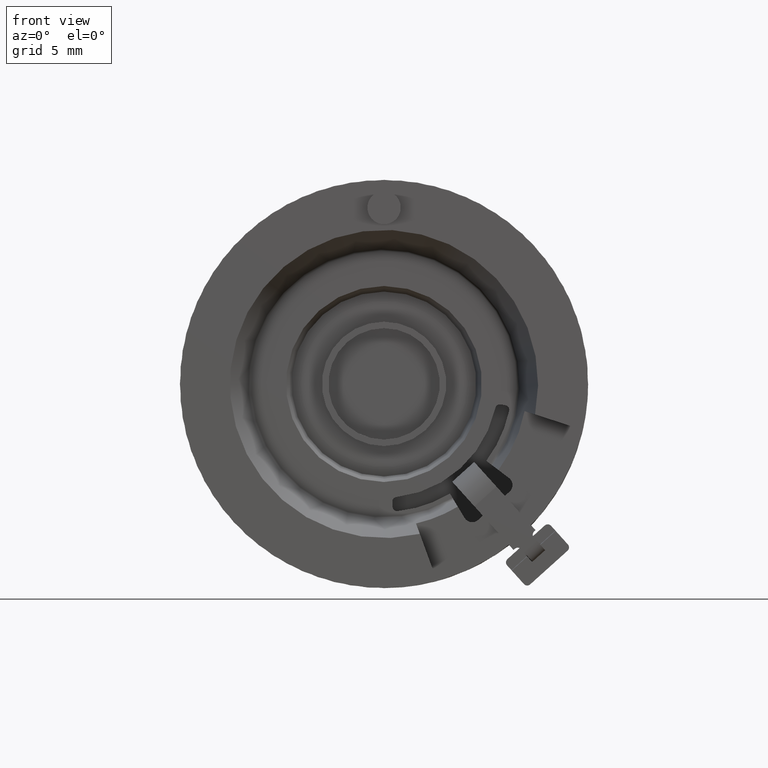
[diagram: clean part render]
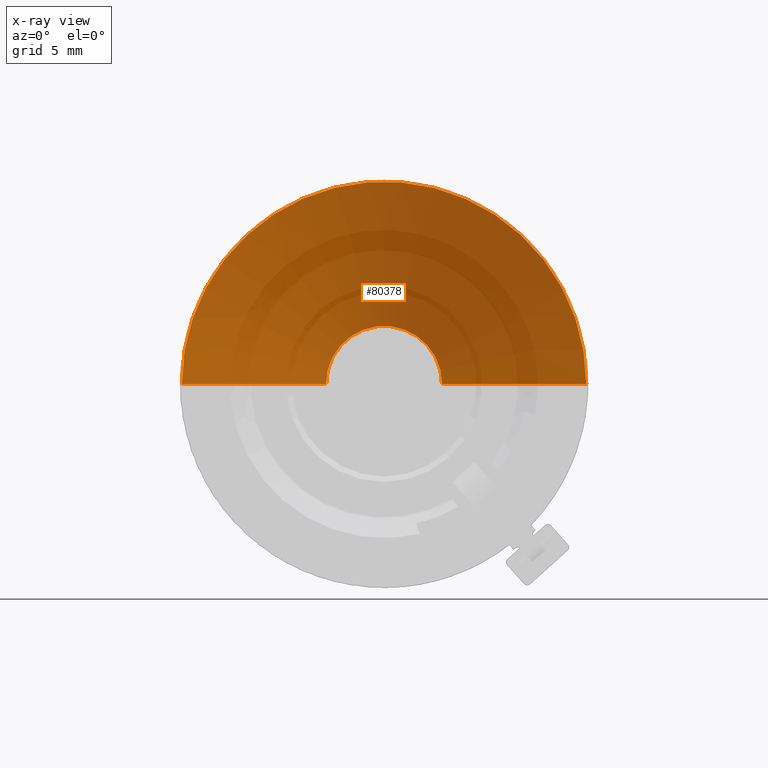
[diagram: x-ray — body ghosted, one internal face saturated and labeled with its STEP entity id]
A machine part, front view, then the same camera in x-ray: the body is ghosted and one INTERNAL B-rep face — a face not visible from any outside direction — is saturated and labeled: STEP entity #80378.
In plain terms, the highlighted conical surface has half-angle 61.055 deg.
Its self-contained STEP definition (entity closure, byte-faithful):
#80254=DIRECTION('',(-8.750847538791E-1,4.839697031100E-1,0.E0));
#80255=VECTOR('',#80254,8.884853684783E0);
#80256=CARTESIAN_POINT('',(1.09E1,4.1E0,0.E0));
#80257=LINE('',#80256,#80255);
#80258=CARTESIAN_POINT('',(0.E0,4.1E0,0.E0));
#80259=DIRECTION('',(0.E0,-1.E0,0.E0));
#80260=DIRECTION('',(1.E0,0.E0,0.E0));
#80261=AXIS2_PLACEMENT_3D('',#80258,#80259,#80260);
#80263=DIRECTION('',(8.750847538791E-1,4.839697031100E-1,0.E0));
#80264=VECTOR('',#80263,8.884853684783E0);
#80265=CARTESIAN_POINT('',(-1.09E1,4.1E0,0.E0));
#80266=LINE('',#80265,#80264);
#80271=CARTESIAN_POINT('',(0.E0,8.4E0,0.E0));
#80272=DIRECTION('',(0.E0,-1.E0,0.E0));
#80273=DIRECTION('',(1.E0,0.E0,0.E0));
#80274=AXIS2_PLACEMENT_3D('',#80271,#80272,#80273);
#80296=CARTESIAN_POINT('',(1.09E1,4.1E0,0.E0));
#80298=VERTEX_POINT('',#80296);
#80299=CARTESIAN_POINT('',(3.125E0,8.4E0,0.E0));
#80300=VERTEX_POINT('',#80299);
#80304=CARTESIAN_POINT('',(-1.09E1,4.1E0,0.E0));
#80306=VERTEX_POINT('',#80304);
#80307=CARTESIAN_POINT('',(-3.125E0,8.4E0,0.E0));
#80308=VERTEX_POINT('',#80307);
#80366=CARTESIAN_POINT('',(0.E0,6.25E0,0.E0));
#80367=DIRECTION('',(0.E0,-1.E0,0.E0));
#80368=DIRECTION('',(-1.E0,0.E0,0.E0));
#80369=AXIS2_PLACEMENT_3D('',#80366,#80367,#80368);
#80370=CONICAL_SURFACE('',#80369,7.0125E0,6.105500780781E1);
#80371=ORIENTED_EDGE('',*,*,#80356,.F.);
#80372=ORIENTED_EDGE('',*,*,#80333,.T.);
#80373=ORIENTED_EDGE('',*,*,#80360,.T.);
#80375=ORIENTED_EDGE('',*,*,#80374,.F.);
#80376=EDGE_LOOP('',(#80371,#80372,#80373,#80375));
#80377=FACE_OUTER_BOUND('',#80376,.F.);
#80378=ADVANCED_FACE('',(#80377),#80370,.T.);
#80262=CIRCLE('',#80261,1.09E1);
#80275=CIRCLE('',#80274,3.125E0);
#80333=EDGE_CURVE('',#80298,#80306,#80262,.T.);
#80356=EDGE_CURVE('',#80298,#80300,#80257,.T.);
#80360=EDGE_CURVE('',#80306,#80308,#80266,.T.);
#80374=EDGE_CURVE('',#80300,#80308,#80275,.T.);